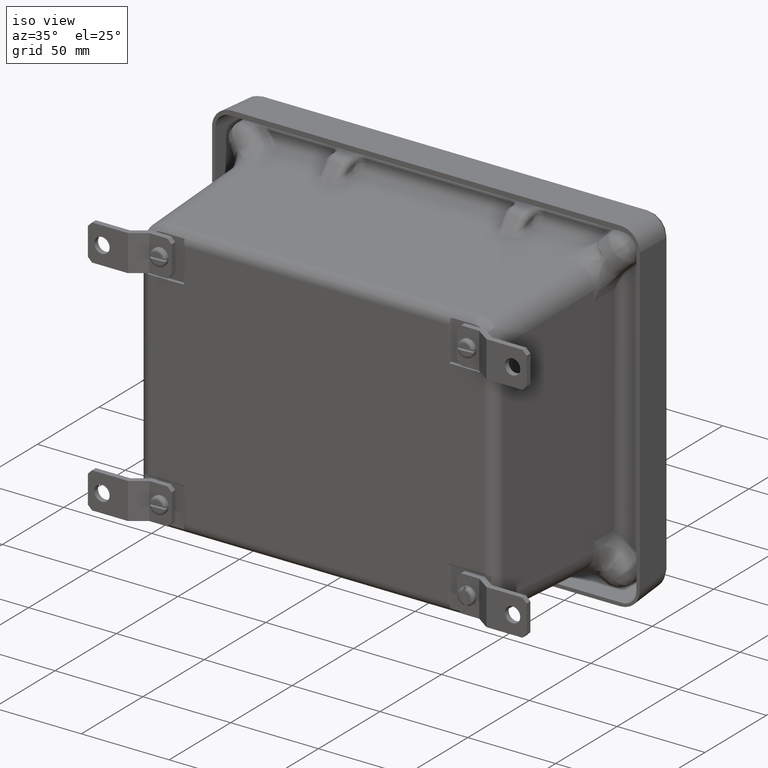
[diagram: clean part render]
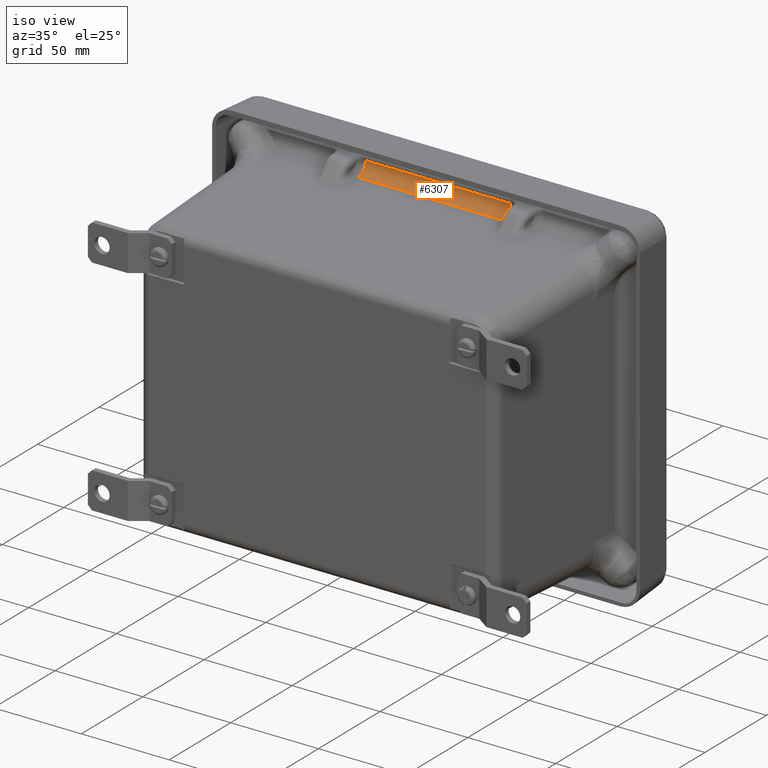
[diagram: same view with one face highlighted and labeled with its STEP entity id]
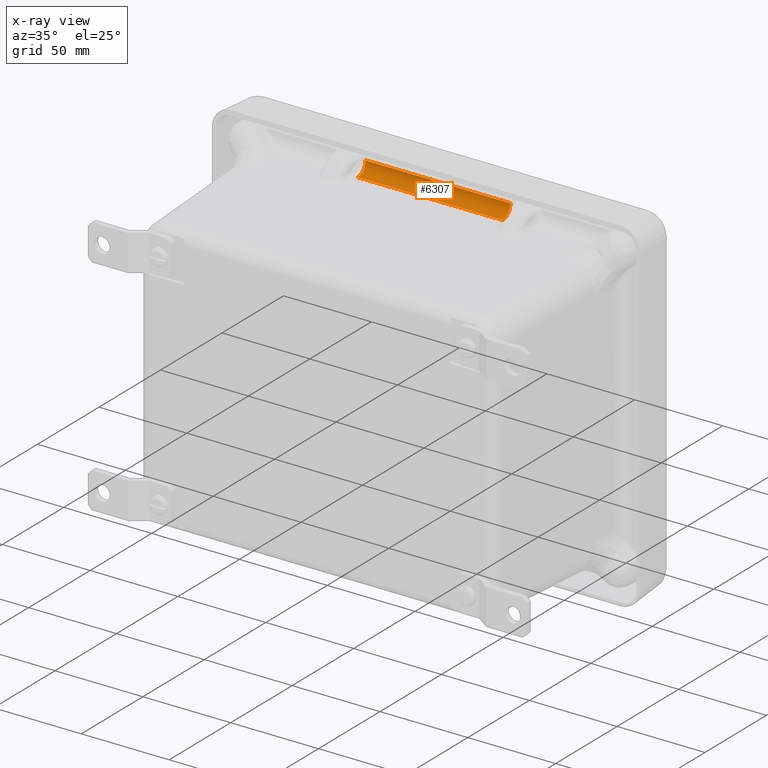
[diagram: x-ray of the same camera — body ghosted, the highlighted face saturated]
A machine part, iso view. The second image highlights one B-rep face of the part: STEP entity #6307.
The next image is the same camera in x-ray: the body ghosted, the highlighted face saturated — about 0% of this face is hidden behind the body in this view.
In plain terms, the highlighted cylindrical surface (edge-blend (fillet) strip) has radius 6.3589 mm, axis along (1, 0, 0).
Its self-contained STEP definition (entity closure, byte-faithful):
#1627 =( BOUNDED_CURVE ( )  B_SPLINE_CURVE ( 3, ( #37244, #40759, #3891, #27421 ),
 .UNSPECIFIED., .F., .F. ) 
 B_SPLINE_CURVE_WITH_KNOTS ( ( 4, 4 ),
 ( 0.2583345803343412000, 1.535889741755009500 ),
 .UNSPECIFIED. ) 
 CURVE ( )  GEOMETRIC_REPRESENTATION_ITEM ( )  RATIONAL_B_SPLINE_CURVE ( ( 1.000000000000000000, 0.8685501210935685500, 0.8685501210935685500, 1.000000000000000000 ) ) 
 REPRESENTATION_ITEM ( '' )  );
#1910 = DIRECTION ( 'NONE',  ( -1.000000000000000000, -0.0000000000000000000, 0.0000000000000000000 ) ) ;
#2054 = EDGE_CURVE ( 'NONE', #13831, #11499, #4129, .T. ) ;
#3093 = VECTOR ( 'NONE', #1910, 39.37007874015748100 ) ;
#3166 = CARTESIAN_POINT ( 'NONE',  ( 5.749046711107578900, -0.2388208444816549400, -0.004009985357683042700 ) ) ;
#3836 = EDGE_CURVE ( 'NONE', #26576, #6879, #5599, .T. ) ;
#3891 = CARTESIAN_POINT ( 'NONE',  ( 2.495030143596517200, -0.1243224642406217000, -1.161381410740123500E-005 ) ) ;
#4129 = LINE ( 'NONE', #28804, #3093 ) ;
#4568 = VECTOR ( 'NONE', #5649, 39.37007874015748100 ) ;
#4856 =( BOUNDED_CURVE ( )  B_SPLINE_CURVE ( 3, ( #35456, #11994, #15368, #38832 ),
 .UNSPECIFIED., .F., .F. ) 
 B_SPLINE_CURVE_WITH_KNOTS ( ( 4, 4 ),
 ( 1.605702911834782500, 2.883258073255449800 ),
 .UNSPECIFIED. ) 
 CURVE ( )  GEOMETRIC_REPRESENTATION_ITEM ( )  RATIONAL_B_SPLINE_CURVE ( ( 1.000000000000000000, 0.8685501210935688800, 0.8685501210935688800, 1.000000000000000000 ) ) 
 REPRESENTATION_ITEM ( '' )  );
#5452 = CARTESIAN_POINT ( 'NONE',  ( 5.744973107435408900, -0.005515351420688271500, 0.1822304056136798700 ) ) ;
#5585 = CARTESIAN_POINT ( 'NONE',  ( 5.746859286490522600, 0.002792066518874055400, 0.2461875081865475800 ) ) ;
#5599 = LINE ( 'NONE', #29177, #4568 ) ;
#5649 = DIRECTION ( 'NONE',  ( 1.000000000000000000, 0.0000000000000000000, -0.0000000000000000000 ) ) ;
#6307 = ADVANCED_FACE ( 'NONE', ( #21420 ), #9304, .F. ) ;
#6762 = CARTESIAN_POINT ( 'NONE',  ( 2.495218382441787100, 0.002792066518874055400, 0.2461875081865475800 ) ) ;
#6879 = VERTEX_POINT ( 'NONE', #10802 ) ;
#9304 = CYLINDRICAL_SURFACE ( 'NONE', #41044, 0.2503500000000000200 ) ;
#9858 = CARTESIAN_POINT ( 'NONE',  ( 2.495218382441787100, 0.002792066518874055400, 0.2461875081865475800 ) ) ;
#10027 = ORIENTED_EDGE ( 'NONE', *, *, #2054, .F. ) ;
#10035 = B_SPLINE_CURVE_WITH_KNOTS ( 'NONE', 3,
 ( #6762, #30284, #27071, #10331 ),
 .UNSPECIFIED., .F., .F.,
 ( 4, 4 ),
 ( 8.741117365843378200E-019, 0.001638857491020181800 ),
 .UNSPECIFIED. ) ;
#10331 = CARTESIAN_POINT ( 'NONE',  ( 2.497104561496900300, -0.005515351420687998300, 0.1822304056136803700 ) ) ;
#10802 = CARTESIAN_POINT ( 'NONE',  ( 5.746859286490522600, 0.002792066518874055400, 0.2461875081865475800 ) ) ;
#11499 = VERTEX_POINT ( 'NONE', #32252 ) ;
#11817 = ORIENTED_EDGE ( 'NONE', *, *, #43005, .T. ) ;
#11994 = CARTESIAN_POINT ( 'NONE',  ( 5.747047525335790200, -0.1243224642406221500, -1.161381410751328300E-005 ) ) ;
#12322 = EDGE_CURVE ( 'NONE', #26576, #30079, #10035, .T. ) ;
#12445 = ORIENTED_EDGE ( 'NONE', *, *, #3836, .F. ) ;
#13831 = VERTEX_POINT ( 'NONE', #3166 ) ;
#14740 = ORIENTED_EDGE ( 'NONE', *, *, #39405, .T. ) ;
#15368 = CARTESIAN_POINT ( 'NONE',  ( 5.745484152241080400, -0.03478416840909009900, 0.07146397385333093400 ) ) ;
#16585 = CARTESIAN_POINT ( 'NONE',  ( 5.744973107435408900, -0.005515351420688271500, 0.1822304056136798700 ) ) ;
#18993 = CARTESIAN_POINT ( 'NONE',  ( 5.744876311517686000, 2.839341263137446700E-005, 0.2032104416028357500 ) ) ;
#21420 = FACE_OUTER_BOUND ( 'NONE', #41926, .T. ) ;
#23382 = VERTEX_POINT ( 'NONE', #16585 ) ;
#23473 = DIRECTION ( 'NONE',  ( 0.0000000000000000000, 0.0000000000000000000, -1.000000000000000000 ) ) ;
#25774 = CARTESIAN_POINT ( 'NONE',  ( 5.745471683399352400, 0.002792066518874061500, 0.2245311694691467000 ) ) ;
#26576 = VERTEX_POINT ( 'NONE', #9858 ) ;
#26719 = CARTESIAN_POINT ( 'NONE',  ( -0.04077956553384606100, -0.2475579334811259200, 0.2461875081865475800 ) ) ;
#27071 = CARTESIAN_POINT ( 'NONE',  ( 2.497201357414622800, 2.839341263155694500E-005, 0.2032104416028360200 ) ) ;
#27421 = CARTESIAN_POINT ( 'NONE',  ( 2.493030957824729800, -0.2388208444816546600, -0.004009985357683042700 ) ) ;
#27612 = ORIENTED_EDGE ( 'NONE', *, *, #43302, .T. ) ;
#28804 = CARTESIAN_POINT ( 'NONE',  ( -0.04077956553384607500, -0.2388208444816549400, -0.004009985357683042700 ) ) ;
#29177 = CARTESIAN_POINT ( 'NONE',  ( -0.04077956553384607500, 0.002792066518874055400, 0.2461875081865475800 ) ) ;
#30079 = VERTEX_POINT ( 'NONE', #43262 ) ;
#30284 = CARTESIAN_POINT ( 'NONE',  ( 2.496605985532956800, 0.002792066518874052000, 0.2245311694691470000 ) ) ;
#32252 = CARTESIAN_POINT ( 'NONE',  ( 2.493030957824729800, -0.2388208444816546600, -0.004009985357683042700 ) ) ;
#33845 = B_SPLINE_CURVE_WITH_KNOTS ( 'NONE', 3,
 ( #5452, #18993, #25774, #5585 ),
 .UNSPECIFIED., .F., .F.,
 ( 4, 4 ),
 ( 0.0000000000000000000, 0.001638857491020195300 ),
 .UNSPECIFIED. ) ;
#35456 = CARTESIAN_POINT ( 'NONE',  ( 5.749046711107578900, -0.2388208444816549400, -0.004009985357683042700 ) ) ;
#37244 = CARTESIAN_POINT ( 'NONE',  ( 2.497104561496900300, -0.005515351420687998300, 0.1822304056136803700 ) ) ;
#38832 = CARTESIAN_POINT ( 'NONE',  ( 5.744973107435408900, -0.005515351420688271500, 0.1822304056136798700 ) ) ;
#39405 = EDGE_CURVE ( 'NONE', #23382, #6879, #33845, .T. ) ;
#40759 = CARTESIAN_POINT ( 'NONE',  ( 2.496593516691226100, -0.03478416840908975200, 0.07146397385333128100 ) ) ;
#41044 = AXIS2_PLACEMENT_3D ( 'NONE', #26719, #43590, #23473 ) ;
#41648 = ORIENTED_EDGE ( 'NONE', *, *, #12322, .T. ) ;
#41926 = EDGE_LOOP ( 'NONE', ( #11817, #14740, #12445, #41648, #27612, #10027 ) ) ;
#43005 = EDGE_CURVE ( 'NONE', #13831, #23382, #4856, .T. ) ;
#43262 = CARTESIAN_POINT ( 'NONE',  ( 2.497104561496900300, -0.005515351420687998300, 0.1822304056136803700 ) ) ;
#43302 = EDGE_CURVE ( 'NONE', #30079, #11499, #1627, .T. ) ;
#43590 = DIRECTION ( 'NONE',  ( 1.000000000000000000, 0.0000000000000000000, -0.0000000000000000000 ) ) ;